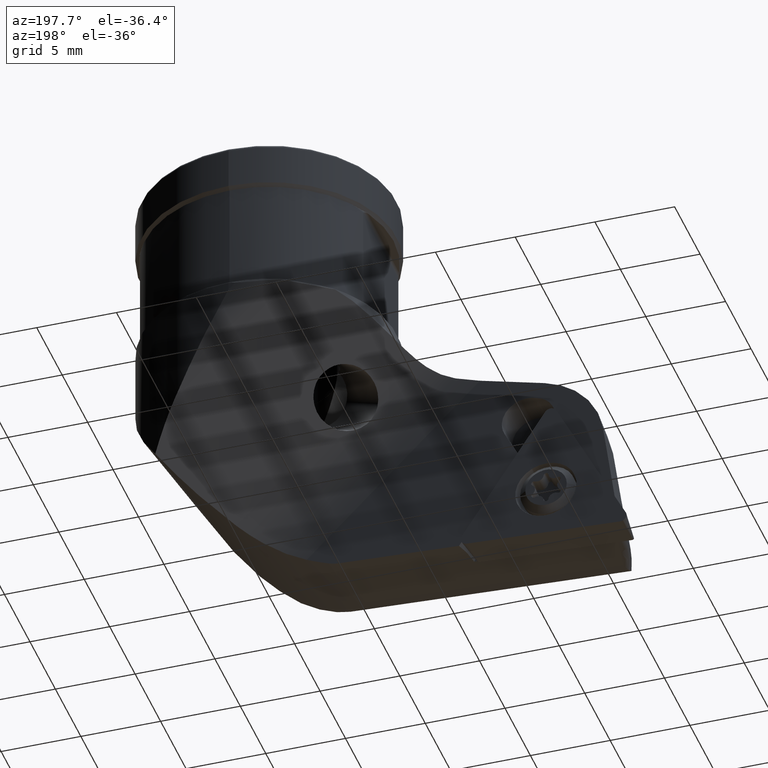
[diagram: clean part render]
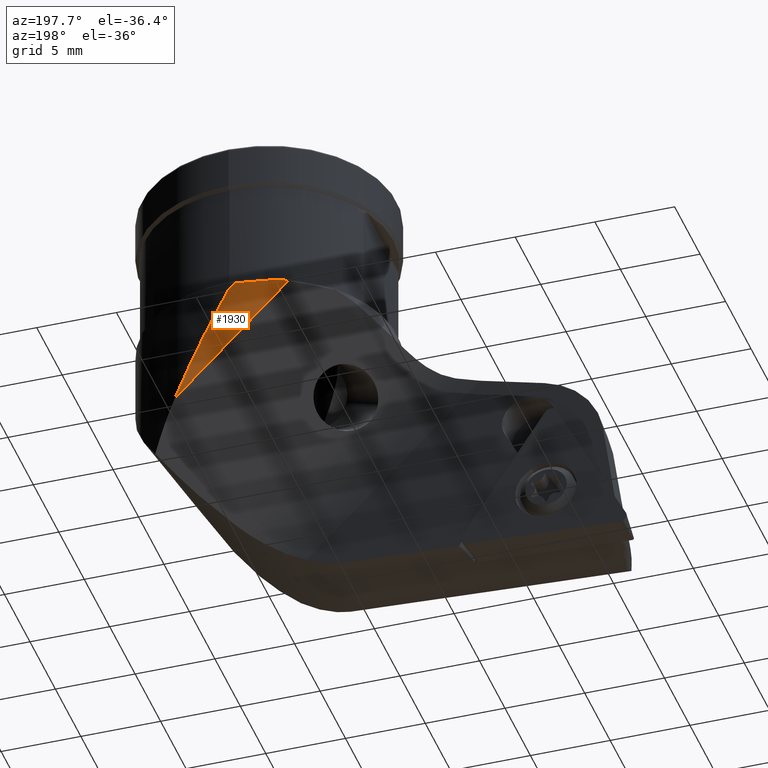
[diagram: same view with one face highlighted and labeled with its STEP entity id]
A machine part, auxiliary view. The second image highlights one B-rep face of the part: STEP entity #1930.
In plain terms, the highlighted cylindrical surface (partial cylindrical patch) has radius 3 mm, axis along (0.7071, -0, -0.7071).
Its self-contained STEP definition (entity closure, byte-faithful):
#914=EDGE_CURVE('NONE',#1528,#1816,#2284,.T.);
#1112=VERTEX_POINT('NONE',#2503);
#1450=EDGE_CURVE('NONE',#1816,#1608,#2871,.F.);
#1528=VERTEX_POINT('NONE',#2958);
#1608=VERTEX_POINT('NONE',#3044);
#1816=VERTEX_POINT('NONE',#3271);
#1920=VERTEX_POINT('NONE',#3386);
#1930=ADVANCED_FACE('NONE',(#3396),#3397,.T.);
#1942=EDGE_CURVE('NONE',#1528,#1112,#3411,.F.);
#1956=EDGE_CURVE('NONE',#1608,#1920,#3426,.F.);
#2000=EDGE_CURVE('NONE',#1112,#1920,#3472,.F.);
#2284=B_SPLINE_CURVE_WITH_KNOTS('',3,(#4020,#4021,#4022,#4023),.UNSPECIFIED.,.F.,.F.,(4,4),(0.0,1.0),.UNSPECIFIED.);
#2503=CARTESIAN_POINT('',(3.64510583720193,7.12132034355964,-17.1318157464279));
#2871=B_SPLINE_CURVE_WITH_KNOTS('',3,(#6017,#6018,#6019,#6020,#6021,#6022,#6023,#6024,#6025,#6026,#6027,#6028,#6029,#6030,#6031,#6032,#6033,#6034,#6035,#6036,#6037,#6038),.UNSPECIFIED.,.F.,.F.,(4,2,2,2,2,2,2,2,2,2,4),(-8.76998467151021,-7.58281871561563,-6.94024184734341,-6.60106440896072,-6.36892843469134,-6.13671849018167,-5.82391053826077,-5.30719611872007,-4.35338046189889,-2.32364861239711,-0.0),.UNSPECIFIED.);
#2958=CARTESIAN_POINT('',(-3.48670990922596,7.12132034355963,-10.0));
#3044=CARTESIAN_POINT('',(-0.424360702247765,8.0,-10.0623492069782));
#3271=CARTESIAN_POINT('',(-3.00655179158668,7.41354478805563,-9.99999999999994));
#3386=CARTESIAN_POINT('',(0.0,8.0,-10.4867099092259));
#3396=FACE_OUTER_BOUND('',#7358,.T.);
#3397=CYLINDRICAL_SURFACE('',#7359,3.0);
#3411=LINE('',#7379,#7380);
#3426=LINE('',#7400,#7401);
#3472=B_SPLINE_CURVE_WITH_KNOTS('',3,(#7473,#7474,#7475,#7476,#7477,#7478,#7479,#7480,#7481,#7482,#7483,#7484),.UNSPECIFIED.,.F.,.F.,(4,2,2,2,2,4),(0.0,0.0100422171078194,2.5385808981819,5.06711957925598,7.59565826033006,8.8599276008671),.UNSPECIFIED.);
#4020=CARTESIAN_POINT('',(-3.48670990922596,7.12132034355963,-10.0));
#4021=CARTESIAN_POINT('',(-3.33361622068199,7.22957392890375,-9.9999999999748));
#4022=CARTESIAN_POINT('',(-3.17276786531053,7.32677651592992,-9.9999999991365));
#4023=CARTESIAN_POINT('',(-3.00655179158668,7.41354478805563,-9.99999999999994));
#6017=CARTESIAN_POINT('',(-0.719218950458169,7.9100736797321,-8.7365));
#6018=CARTESIAN_POINT('',(-0.54100294695614,7.91115821780673,-8.92083843489448));
#6019=CARTESIAN_POINT('',(-0.37841174406554,7.91523046444436,-9.10549589143654));
#6020=CARTESIAN_POINT('',(-0.196464573194781,7.92804999694557,-9.36620419815389));
#6021=CARTESIAN_POINT('',(-0.141397982462242,7.93410213709546,-9.4592283045101));
#6022=CARTESIAN_POINT('',(-0.0886681085716433,7.94581026961114,-9.59476423537125));
#6023=CARTESIAN_POINT('',(-0.0744020633196517,7.95071212457258,-9.6450043352862));
#6024=CARTESIAN_POINT('',(-0.0672823125837766,7.96012333828667,-9.72924585171839));
#6025=CARTESIAN_POINT('',(-0.0690746796249098,7.96427209552765,-9.76345155057734));
#6026=CARTESIAN_POINT('',(-0.0859280336450075,7.97287372186879,-9.82997613174257));
#6027=CARTESIAN_POINT('',(-0.100485531617581,7.97705753383313,-9.86029960114267));
#6028=CARTESIAN_POINT('',(-0.148422131331706,7.9860999731534,-9.92517741253893));
#6029=CARTESIAN_POINT('',(-0.184767041832482,7.99029948669929,-9.95507325639441));
#6030=CARTESIAN_POINT('',(-0.289637212403851,7.99830836075813,-10.0196384752494));
#6031=CARTESIAN_POINT('',(-0.368082886990706,8.00031359514906,-10.047398898126));
#6032=CARTESIAN_POINT('',(-0.579056515770993,7.99929811433745,-10.103950160455));
#6033=CARTESIAN_POINT('',(-0.748985533380578,7.99094432402958,-10.1263611201299));
#6034=CARTESIAN_POINT('',(-1.3514348929434,7.92720113180371,-10.1626997327033));
#6035=CARTESIAN_POINT('',(-1.91625226033396,7.8229078345089,-10.1425333230694));
#6036=CARTESIAN_POINT('',(-3.26839569004264,7.33695194608602,-9.97755140684716));
#6037=CARTESIAN_POINT('',(-3.93684874585528,6.96756078627099,-9.83296613186602));
#6038=CARTESIAN_POINT('',(-4.53260780479217,6.52819740057629,-9.60502327719876));
#7358=EDGE_LOOP('',(#9169,#9170,#9171,#9172,#9173));
#7359=AXIS2_PLACEMENT_3D('',#9174,#9175,#9176);
#7379=CARTESIAN_POINT('',(-17.9433549556615,7.12132034355963,4.4566450464356));
#7380=VECTOR('',#9198,1.0);
#7400=CARTESIAN_POINT('',(-16.4433549556615,8.0,5.95664504643561));
#7401=VECTOR('',#9214,1.0);
#7473=CARTESIAN_POINT('',(0.0,8.0,-10.4867099092259));
#7474=CARTESIAN_POINT('',(0.00158113868325513,8.0,-10.4896603541758));
#7475=CARTESIAN_POINT('',(0.00347850509275644,7.99999940000017,-10.4932008880704));
#7476=CARTESIAN_POINT('',(0.403175962091396,7.99974660910221,-11.2390464103026));
#7477=CARTESIAN_POINT('',(0.820153631897081,7.96955327263161,-12.0173403662127));
#7478=CARTESIAN_POINT('',(1.67315813163025,7.83498393824098,-13.5975754572111));
#7479=CARTESIAN_POINT('',(2.10916237873382,7.73074517786878,-14.3995404661125));
#7480=CARTESIAN_POINT('',(2.98414059682106,7.43692652214816,-15.9788337985795));
#7481=CARTESIAN_POINT('',(3.4227856851179,7.24779874923962,-16.7559259534344));
#7482=CARTESIAN_POINT('',(4.07463103406344,6.88904158874318,-17.8651093159242));
#7483=CARTESIAN_POINT('',(4.29090654190144,6.75691638211742,-18.2253574737484));
#7484=CARTESIAN_POINT('',(4.50605415341256,6.6102553631848,-18.5724505476075));
#9169=ORIENTED_EDGE('',*,*,#2000,.F.);
#9170=ORIENTED_EDGE('',*,*,#1942,.F.);
#9171=ORIENTED_EDGE('',*,*,#914,.T.);
#9172=ORIENTED_EDGE('',*,*,#1450,.T.);
#9173=ORIENTED_EDGE('',*,*,#1956,.T.);
#9174=CARTESIAN_POINT('',(-16.4433549556615,5.0,5.95664504643561));
#9175=DIRECTION('',(0.707106781186546,-0.0,-0.707106781186549));
#9176=DIRECTION('',(-0.707106781186549,0.0,-0.707106781186546));
#9198=DIRECTION('',(-0.707106781186546,0.0,0.707106781186549));
#9214=DIRECTION('',(-0.707106781186546,0.0,0.707106781186549));